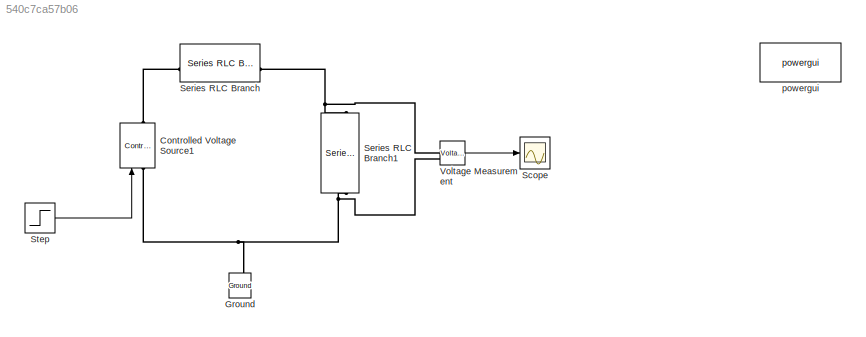
MODEL slx_540c7ca57b06
KIND model
CONFIG AbsTol = auto
CONFIG EnableMultiTasking = off
CONFIG FixedStep = auto
CONFIG MaxStep = auto
CONFIG MinStep = auto
CONFIG RelTol = 1e-3
CONFIG SampleTimeConstraint = Unconstrained
CONFIG SolverName = VariableStepAuto
CONFIG StartTime = 0.0
CONFIG StopTime = 10.0
BLOCK [Reference] Controlled Voltage Source1  REF=spsControlledVoltageSourceLib/Controlled Voltage Source
  LibrarySourceBlock = sps_lib/Sources/Controlled Voltage Source
  SourceBlock = spsControlledVoltageSourceLib/Controlled Voltage Source
  SourceType = Controlled Voltage Source
BLOCK [Reference] Ground  REF=spsGroundLib/Ground
  LibrarySourceBlock = sps_lib/Utilities/Ground
  NameLocation = right
  SourceBlock = spsGroundLib/Ground
  SourceType = Ground
BLOCK [Scope] Scope
  Floating = off
  NumInputPorts = 1
  ScopeSpecificationString = Simulink.scopes.TimeScopeBlockCfg('CurrentConfiguration', extmgr.ConfigurationSet(extmgr.Configuration('Core','General UI',true),extmgr.Configuration('Core','Source UI',true),extmgr.Configuration('Sources','WiredSimulink',true),extmgr.Configuration('Visuals','Time Domain',true,'SerializedDisplays',{struct('MinYLimReal','-0.125','MaxYLimReal','1.12497','YLabelReal','','MinYLimMag','0.00000','MaxYLi...<+1453ch>
BLOCK [Reference] Series RLC Branch  REF=spsSeriesRLCBranchLib/Series RLC Branch
  LibrarySourceBlock = sps_lib/Passives/Series RLC Branch
  SourceBlock = spsSeriesRLCBranchLib/Series RLC Branch
  SourceType = Series RLC Branch
BLOCK [Reference] Series RLC Branch1  REF=spsSeriesRLCBranchLib/Series RLC Branch
  LibrarySourceBlock = sps_lib/Passives/Series RLC Branch
  NameLocation = left
  SourceBlock = spsSeriesRLCBranchLib/Series RLC Branch
  SourceType = Series RLC Branch
BLOCK [Step] Step
  SampleTime = 0
BLOCK [Reference] Voltage Measurement  REF=spsVoltageMeasurementLib/Voltage Measurement
  LibrarySourceBlock = sps_lib/Sensors and Measurements/Voltage Measurement
  SourceBlock = spsVoltageMeasurementLib/Voltage Measurement
  SourceType = Voltage Measurement
  UserDataPersistent = on
BLOCK [Reference] powergui  REF=sps_lib/powergui
  LibrarySourceBlock = sps_lib/powergui
  Priority = 1
  SourceBlock = sps_lib/powergui
  SourceType = PSB option menu block
LINE Step:1 -> Controlled Voltage Source1:1
LINE Voltage Measurement:1 -> Scope:1
PNET net1: Controlled Voltage Source1:LConn1 -- Ground:LConn1 -- Series RLC Branch1:RConn1 -- Voltage Measurement:LConn2
PLINE Controlled Voltage Source1:RConn1 -- Series RLC Branch:LConn1
PNET net2: Series RLC Branch1:LConn1 -- Series RLC Branch:RConn1 -- Voltage Measurement:LConn1
note: PNET lines group multi-terminal physical nets as a canonical sorted terminal list (undirected conserving connections); 2-terminal nets keep the pairwise PLINE form
